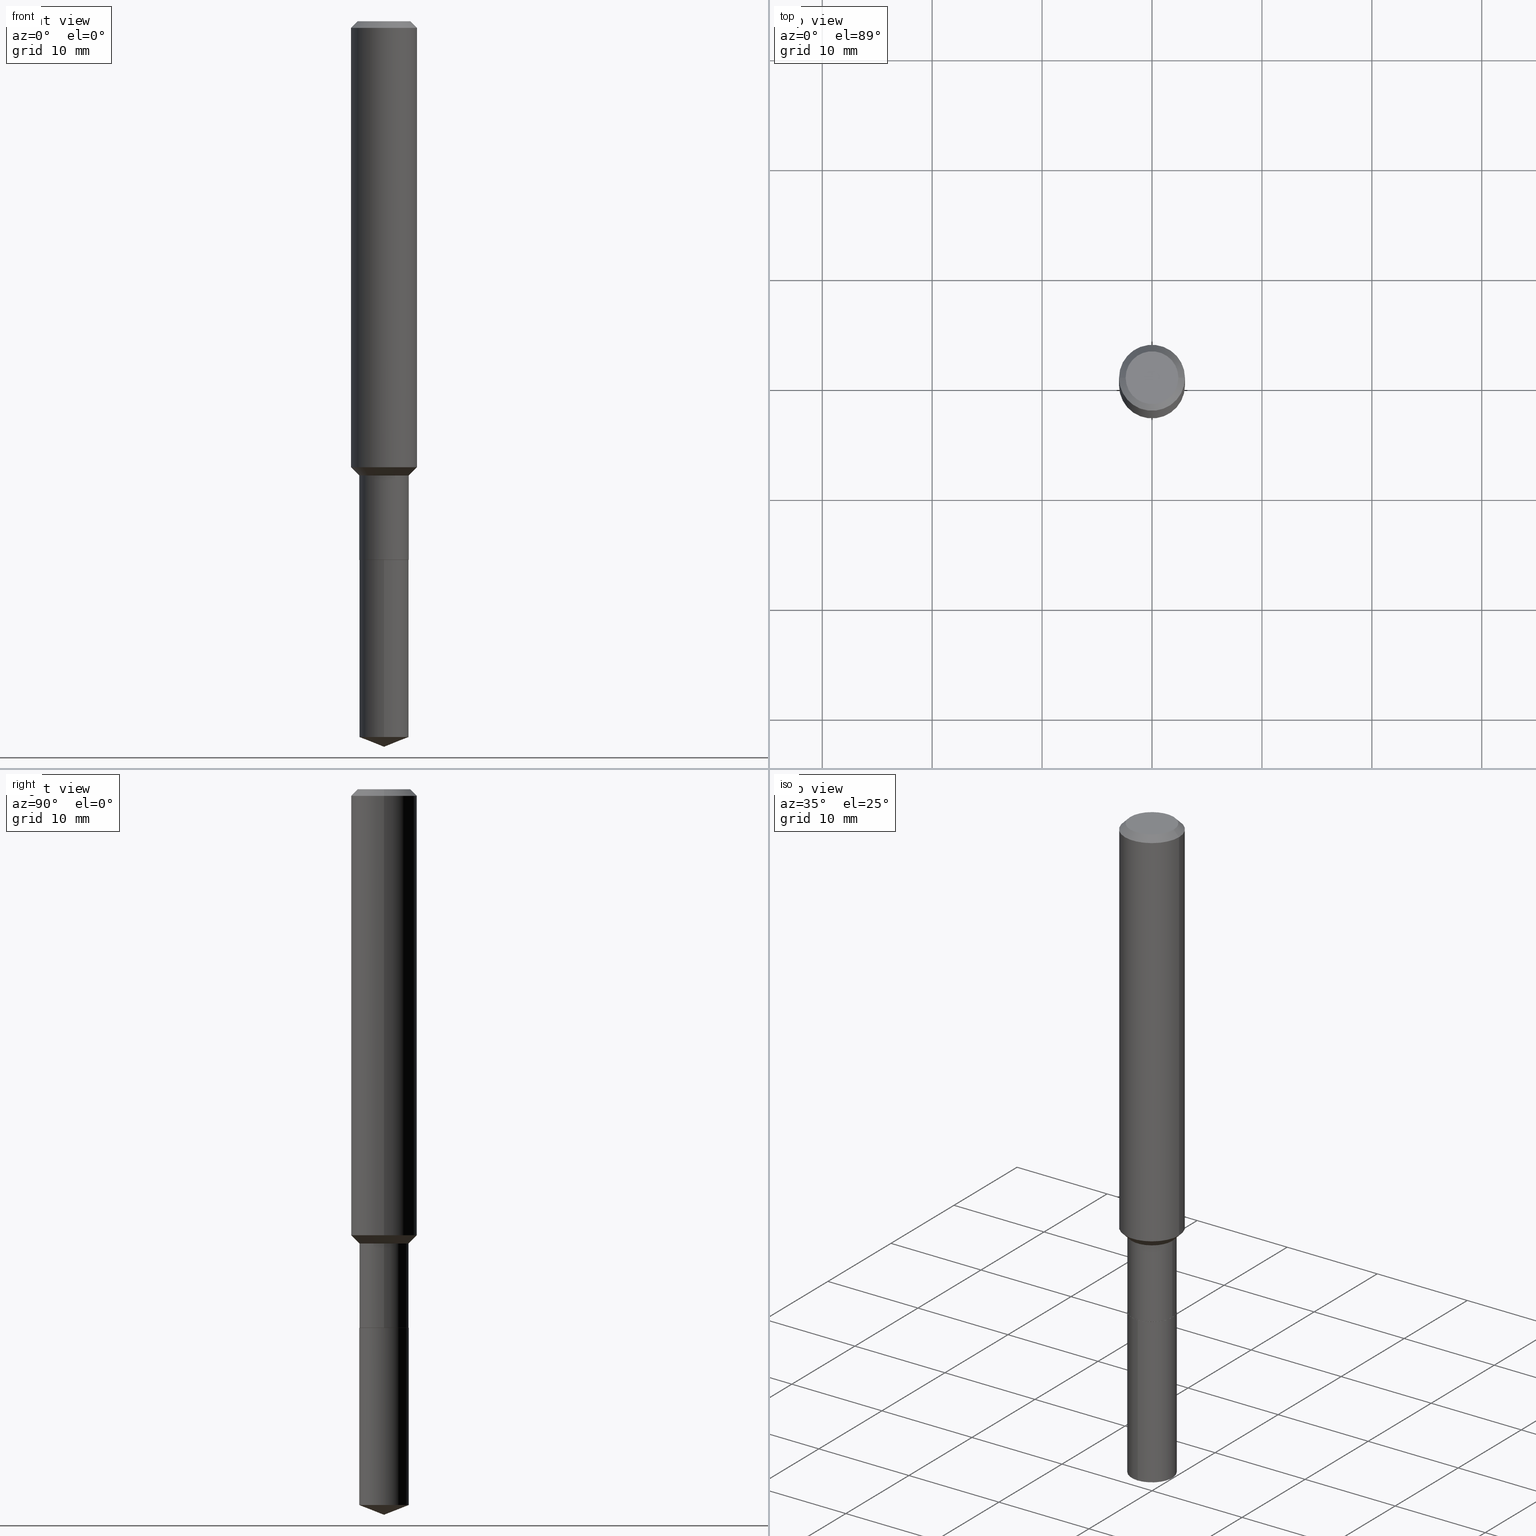
[diagram: canonical four-view strip — front | top / right | iso, engineering-drawing reading convention]
A machine part, canonical four-view strip (front | top / right | iso — engineering-drawing reading convention). The complete STEP part file that produces these views, byte-faithful:
ISO-10303-21;
HEADER;
FILE_DESCRIPTION (( 'STEP AP203' ),
    '1' );
FILE_NAME ('66415.STEP',
    '2024-04-24T22:23:58',
    ( '' ),
    ( '' ),
    'SwSTEP 2.0',
    'SolidWorks 2023',
    '' );
FILE_SCHEMA (( 'CONFIG_CONTROL_DESIGN' ));
ENDSEC;

DATA;
#1 = FACE_OUTER_BOUND ( 'NONE', #424, .T. ) ;
#2 = CARTESIAN_POINT ( 'NONE',  ( 0.08859999999999995657, -6.298981483406915301E-15, -1.626899999999999791 ) ) ;
#3 = ADVANCED_BREP_SHAPE_REPRESENTATION ( '66415', ( #487, #146, #377 ), #244 ) ;
#4 = AXIS2_PLACEMENT_3D ( 'NONE', #26, #402, #298 ) ;
#5 = AXIS2_PLACEMENT_3D ( 'NONE', #49, #470, #198 ) ;
#6 = LINE ( 'NONE', #161, #358 ) ;
#7 = ORIENTED_EDGE ( 'NONE', *, *, #173, .F. ) ;
#8 = EDGE_CURVE ( 'NONE', #422, #332, #333, .T. ) ;
#9 = CARTESIAN_POINT ( 'NONE',  ( 3.906391871000136996E-29, -5.577292290668039694E-15, -1.597399999999999709 ) ) ;
#10 = ORIENTED_EDGE ( 'NONE', *, *, #205, .F. ) ;
#11 = PRODUCT_DEFINITION ( 'UNKNOWN', '', #438, #242 ) ;
#12 = DIRECTION ( 'NONE',  ( 2.445468806185136597E-29, -3.491481338843145583E-15, -1.000000000000000000 ) ) ;
#13 = ORIENTED_EDGE ( 'NONE', *, *, #354, .F. ) ;
#14 = CARTESIAN_POINT ( 'NONE',  ( 5.776197320209327532E-31, -8.246878922347559293E-17, -0.02362000000000014088 ) ) ;
#15 = CC_DESIGN_APPROVAL ( #369, ( #438 ) ) ;
#16 = EDGE_LOOP ( 'NONE', ( #241, #375, #45, #210 ) ) ;
#17 = DIRECTION ( 'NONE',  ( 1.000000000000000000, 0.000000000000000000, 0.000000000000000000 ) ) ;
#18 = EDGE_LOOP ( 'NONE', ( #239, #36, #172 ) ) ;
#19 = COORDINATED_UNIVERSAL_TIME_OFFSET ( 5, 0, .BEHIND. ) ;
#20 = ORIENTED_EDGE ( 'NONE', *, *, #434, .T. ) ;
#21 = DIRECTION ( 'NONE',  ( 0.000000000000000000, 0.000000000000000000, 1.000000000000000000 ) ) ;
#22 = CIRCLE ( 'NONE', #81, 0.08809999999999999776 ) ;
#23 = DIRECTION ( 'NONE',  ( -2.445468806185136597E-29, 3.491481338843145583E-15, 1.000000000000000000 ) ) ;
#24 = EDGE_CURVE ( 'NONE', #214, #279, #166, .T. ) ;
#25 = APPROVAL_ROLE ( '' ) ;
#26 = CARTESIAN_POINT ( 'NONE',  ( 3.906391871000136996E-29, -5.577292290668039694E-15, -1.597399999999999709 ) ) ;
#27 = DIRECTION ( 'NONE',  ( 1.000000000000000000, -6.982962677686261189E-15, 0.000000000000000000 ) ) ;
#28 = CARTESIAN_POINT ( 'NONE',  ( -0.08859999999999995657, -5.577440086244953607E-15, -1.626899999999999791 ) ) ;
#29 = CONICAL_SURFACE ( 'NONE', #156, 0.1180999999999999966, 0.7853981633974460586 ) ;
#30 = CYLINDRICAL_SURFACE ( 'NONE', #325, 0.1181000000000001077 ) ;
#31 = DIRECTION ( 'NONE',  ( 1.000000000000000000, -6.982962677686266711E-15, 4.876176775795935793E-29 ) ) ;
#32 = CYLINDRICAL_SURFACE ( 'NONE', #437, 0.08859999999999999820 ) ;
#33 = AXIS2_PLACEMENT_3D ( 'NONE', #220, #305, #488 ) ;
#34 = ADVANCED_FACE ( 'NONE', ( #250 ), #223, .T. ) ;
#35 = DIRECTION ( 'NONE',  ( 1.000000000000000000, -6.982962677686265922E-15, 4.876176775795935232E-29 ) ) ;
#36 = ORIENTED_EDGE ( 'NONE', *, *, #205, .T. ) ;
#37 = APPROVAL ( #211, 'UNSPECIFIED' ) ;
#38 = LINE ( 'NONE', #44, #195 ) ;
#39 = ORIENTED_EDGE ( 'NONE', *, *, #163, .F. ) ;
#40 = DIRECTION ( 'NONE',  ( -2.445600324468022812E-29, 3.491292997176496654E-15, 1.000000000000000000 ) ) ;
#41 = ORIENTED_EDGE ( 'NONE', *, *, #413, .F. ) ;
#42 = AXIS2_PLACEMENT_3D ( 'NONE', #477, #57, #132 ) ;
#43 = AXIS2_PLACEMENT_3D ( 'NONE', #104, #482, #75 ) ;
#44 = CARTESIAN_POINT ( 'NONE',  ( -0.1180999999999999966, 7.422191030112725094E-16, -0.02362000000000014088 ) ) ;
#45 = ORIENTED_EDGE ( 'NONE', *, *, #413, .T. ) ;
#46 = DIRECTION ( 'NONE',  ( -2.445468806185136597E-29, 3.491481338843145583E-15, 1.000000000000000000 ) ) ;
#47 = ORIENTED_EDGE ( 'NONE', *, *, #396, .T. ) ;
#48 = ADVANCED_FACE ( 'NONE', ( #179 ), #330, .T. ) ;
#49 = CARTESIAN_POINT ( 'NONE',  ( 4.717553874011746679E-29, -6.735416650762311704E-15, -1.929099999999999815 ) ) ;
#50 = EDGE_LOOP ( 'NONE', ( #77, #201, #361, #383 ) ) ;
#51 = CONICAL_SURFACE ( 'NONE', #43, 0.08809999999999999776, 0.7853981633975507526 ) ;
#52 = VERTEX_POINT ( 'NONE', #443 ) ;
#53 = APPROVAL_STATUS ( 'not_yet_approved' ) ;
#54 = CARTESIAN_POINT ( 'NONE',  ( 0.000000000000000000, 0.000000000000000000, 0.000000000000000000 ) ) ;
#55 = ORIENTED_EDGE ( 'NONE', *, *, #311, .T. ) ;
#56 = DATE_TIME_ROLE ( 'classification_date' ) ;
#57 = DIRECTION ( 'NONE',  ( -2.445468806185136597E-29, 3.491481338843145583E-15, 1.000000000000000000 ) ) ;
#58 = COORDINATED_UNIVERSAL_TIME_OFFSET ( 5, 0, .BEHIND. ) ;
#59 = CYLINDRICAL_SURFACE ( 'NONE', #426, 0.1181000000000001077 ) ;
#60 = PERSON ( 'UNSPECIFIED', 'UNSPECIFIED', 'UNSPECIFIED', ('UNSPECIFIED'), ('UNSPECIFIED'), ('UNSPECIFIED') ) ;
#61 = EDGE_CURVE ( 'NONE', #228, #52, #435, .T. ) ;
#62 = CARTESIAN_POINT ( 'NONE',  ( 4.717553874011746679E-29, -6.735416650762311704E-15, -1.929099999999999815 ) ) ;
#63 = CALENDAR_DATE ( 2024, 24, 4 ) ;
#64 = AXIS2_PLACEMENT_3D ( 'NONE', #181, #363, #246 ) ;
#65 = DIRECTION ( 'NONE',  ( -6.982962677686265922E-15, -1.000000000000000000, 3.498627837350008561E-15 ) ) ;
#66 = VECTOR ( 'NONE', #200, 39.37007874015748143 ) ;
#67 = DIRECTION ( 'NONE',  ( -2.445468806185136597E-29, 3.491481338843145583E-15, 1.000000000000000000 ) ) ;
#68 = CARTESIAN_POINT ( 'NONE',  ( 0.08859999999999999820, -7.352361403335894731E-15, -1.928600000000000092 ) ) ;
#69 = ORIENTED_EDGE ( 'NONE', *, *, #226, .T. ) ;
#70 = EDGE_CURVE ( 'NONE', #281, #315, #410, .T. ) ;
#71 = CARTESIAN_POINT ( 'NONE',  ( -0.1181000000000001077, 8.391509709326790846E-16, -5.809262341591049389E-30 ) ) ;
#72 = CIRCLE ( 'NONE', #302, 0.08859999999999999820 ) ;
#73 = AXIS2_PLACEMENT_3D ( 'NONE', #273, #113, #382 ) ;
#74 = APPROVAL_PERSON_ORGANIZATION ( #406, #369, #293 ) ;
#75 = DIRECTION ( 'NONE',  ( 1.000000000000000000, -6.982962677686264344E-15, 0.000000000000000000 ) ) ;
#76 = DIRECTION ( 'NONE',  ( -2.445600324468022531E-29, 3.491292997176496654E-15, 1.000000000000000000 ) ) ;
#77 = ORIENTED_EDGE ( 'NONE', *, *, #389, .F. ) ;
#78 = DIRECTION ( 'NONE',  ( -6.982962677686265133E-15, -1.000000000000000000, 3.083349879982238325E-15 ) ) ;
#79 = EDGE_LOOP ( 'NONE', ( #317, #391, #87, #274 ) ) ;
#80 = VECTOR ( 'NONE', #208, 39.37007874015748143 ) ;
#81 = AXIS2_PLACEMENT_3D ( 'NONE', #240, #46, #164 ) ;
#82 = ORGANIZATION ( 'UNSPECIFIED', 'UNSPECIFIED', '' ) ;
#83 = CARTESIAN_POINT ( 'NONE',  ( 3.978533200782598270E-29, -5.680290990163912349E-15, -1.626899999999999791 ) ) ;
#84 = EDGE_LOOP ( 'NONE', ( #486, #144, #55, #490 ) ) ;
#85 = CARTESIAN_POINT ( 'NONE',  ( -6.186904932429559170E-16, -0.08860000000000672893, -1.929099999999999593 ) ) ;
#86 = CC_DESIGN_DATE_AND_TIME_ASSIGNMENT ( #472, #137, ( #11 ) ) ;
#87 = ORIENTED_EDGE ( 'NONE', *, *, #327, .T. ) ;
#88 = ADVANCED_FACE ( 'NONE', ( #212 ), #449, .F. ) ;
#89 = DIRECTION ( 'NONE',  ( 1.000000000000000000, -6.982962677686261189E-15, 0.000000000000000000 ) ) ;
#90 = ORIENTED_EDGE ( 'NONE', *, *, #163, .T. ) ;
#91 = CLOSED_SHELL ( 'NONE', ( #251, #344, #153, #484, #265, #256, #34, #245, #222, #303, #411, #394 ) ) ;
#92 = APPLICATION_PROTOCOL_DEFINITION ( 'international standard', 'config_control_design', 1994, #155 ) ;
#93 = CARTESIAN_POINT ( 'NONE',  ( -0.08859999999999998432, 6.295408638834486533E-16, -4.358176489965845566E-30 ) ) ;
#94 = CC_DESIGN_PERSON_AND_ORGANIZATION_ASSIGNMENT ( #253, #291, ( #176 ) ) ;
#95 = DIRECTION ( 'NONE',  ( 6.982962677686265922E-15, 1.000000000000000000, -3.491292997176496654E-15 ) ) ;
#96 = COORDINATED_UNIVERSAL_TIME_OFFSET ( 5, 0, .BEHIND. ) ;
#97 = DIRECTION ( 'NONE',  ( -6.982962677686265133E-15, -1.000000000000000000, 6.166699759964476650E-15 ) ) ;
#98 = CALENDAR_DATE ( 2024, 24, 4 ) ;
#99 = AXIS2_PLACEMENT_3D ( 'NONE', #174, #129, #473 ) ;
#100 = LINE ( 'NONE', #254, #425 ) ;
#101 = PERSON_AND_ORGANIZATION_ROLE ( 'creator' ) ;
#102 = CARTESIAN_POINT ( 'NONE',  ( 3.978533200782598270E-29, -5.680290990163912349E-15, -1.626899999999999791 ) ) ;
#103 = DIRECTION ( 'NONE',  ( 0.7071067811865495711, -2.468850131082277965E-15, 0.7071067811865454633 ) ) ;
#104 = CARTESIAN_POINT ( 'NONE',  ( 4.717553874011746679E-29, -6.735416650762311704E-15, -1.929099999999999815 ) ) ;
#105 = AXIS2_PLACEMENT_3D ( 'NONE', #9, #314, #432 ) ;
#106 = FACE_OUTER_BOUND ( 'NONE', #50, .T. ) ;
#107 = DIRECTION ( 'NONE',  ( -1.000000000000000000, 6.982962677686265922E-15, -4.876176775795935793E-29 ) ) ;
#108 = ORIENTED_EDGE ( 'NONE', *, *, #24, .T. ) ;
#109 = CARTESIAN_POINT ( 'NONE',  ( 6.354140459258678806E-29, -9.072502383681672387E-15, -2.598399999999999821 ) ) ;
#110 = ORIENTED_EDGE ( 'NONE', *, *, #327, .F. ) ;
#111 = DIRECTION ( 'NONE',  ( -2.445468806185136597E-29, 3.491481338843145583E-15, 1.000000000000000000 ) ) ;
#112 = EDGE_LOOP ( 'NONE', ( #199, #467 ) ) ;
#113 = DIRECTION ( 'NONE',  ( -2.445600324468022812E-29, 3.491292997176496654E-15, 1.000000000000000000 ) ) ;
#114 = VERTEX_POINT ( 'NONE', #397 ) ;
#115 = FACE_OUTER_BOUND ( 'NONE', #264, .T. ) ;
#116 = ORIENTED_EDGE ( 'NONE', *, *, #120, .T. ) ;
#117 = CIRCLE ( 'NONE', #243, 0.08809999999999999776 ) ;
#118 = CARTESIAN_POINT ( 'NONE',  ( 5.776197320209327532E-31, -8.246878922347559293E-17, -0.02362000000000014088 ) ) ;
#119 = ORIENTED_EDGE ( 'NONE', *, *, #448, .T. ) ;
#120 = EDGE_CURVE ( 'NONE', #165, #464, #72, .T. ) ;
#121 = CARTESIAN_POINT ( 'NONE',  ( 4.717553874011746679E-29, -6.735416650762311704E-15, -1.929099999999999815 ) ) ;
#122 = ORIENTED_EDGE ( 'NONE', *, *, #61, .T. ) ;
#123 = CARTESIAN_POINT ( 'NONE',  ( -0.08809999999999999776, -6.109428500557663752E-15, -1.929099999999999815 ) ) ;
#124 = AXIS2_PLACEMENT_3D ( 'NONE', #329, #294, #475 ) ;
#125 = AXIS2_PLACEMENT_3D ( 'NONE', #338, #458, #65 ) ;
#126 = EDGE_CURVE ( 'NONE', #469, #315, #368, .T. ) ;
#127 = CONICAL_SURFACE ( 'NONE', #268, 0.08859999999999995657, 0.7853981633974511656 ) ;
#128 = PERSON_AND_ORGANIZATION ( #60, #82 ) ;
#129 = DIRECTION ( 'NONE',  ( -2.445468806185136597E-29, 3.491481338843145583E-15, 1.000000000000000000 ) ) ;
#130 = CC_DESIGN_PERSON_AND_ORGANIZATION_ASSIGNMENT ( #128, #288, ( #290 ) ) ;
#131 = PERSON_AND_ORGANIZATION_ROLE ( 'design_supplier' ) ;
#132 = DIRECTION ( 'NONE',  ( 1.000000000000000000, -6.982962677686269077E-15, 0.000000000000000000 ) ) ;
#133 = LENGTH_MEASURE_WITH_UNIT ( LENGTH_MEASURE( 0.02539999999999999897 ), #365 );
#134 = EDGE_CURVE ( 'NONE', #206, #281, #446, .T. ) ;
#135 = DIRECTION ( 'NONE',  ( -2.445468806185136597E-29, 3.491481338843145583E-15, 1.000000000000000000 ) ) ;
#136 = CC_DESIGN_PERSON_AND_ORGANIZATION_ASSIGNMENT ( #362, #328, ( #438 ) ) ;
#137 = DATE_TIME_ROLE ( 'creation_date' ) ;
#138 = CONICAL_SURFACE ( 'NONE', #5, 0.08809999999999999776, 0.7853981633975507526 ) ;
#139 = DIRECTION ( 'NONE',  ( -2.445600324468022812E-29, 3.491292997176496654E-15, 1.000000000000000000 ) ) ;
#140 = APPROVAL_PERSON_ORGANIZATION ( #297, #37, #25 ) ;
#141 = DATE_AND_TIME ( #63, #219 ) ;
#142 = CARTESIAN_POINT ( 'NONE',  ( 4.717553874011746679E-29, -6.735416650762311704E-15, -1.929099999999999815 ) ) ;
#143 = CARTESIAN_POINT ( 'NONE',  ( 4.717553874011746679E-29, -6.735416650762311704E-15, -1.929099999999999815 ) ) ;
#144 = ORIENTED_EDGE ( 'NONE', *, *, #145, .T. ) ;
#145 = EDGE_CURVE ( 'NONE', #159, #471, #418, .T. ) ;
#146 = MANIFOLD_SOLID_BREP ( 'Body-Move/Copy2[2]', #91 ) ;
#147 = EDGE_CURVE ( 'NONE', #159, #422, #100, .T. ) ;
#148 = CLOSED_SHELL ( 'NONE', ( #48, #465, #213, #234, #88 ) ) ;
#149 = DIRECTION ( 'NONE',  ( 1.000000000000000000, -6.982962677686265922E-15, 4.876176775795935232E-29 ) ) ;
#150 = DIRECTION ( 'NONE',  ( -1.000000000000000000, 6.982962677686266711E-15, 0.000000000000000000 ) ) ;
#151 = ORIENTED_EDGE ( 'NONE', *, *, #483, .T. ) ;
#152 = LINE ( 'NONE', #335, #447 ) ;
#153 = ADVANCED_FACE ( 'NONE', ( #407 ), #59, .T. ) ;
#154 = CARTESIAN_POINT ( 'NONE',  ( 0.08859999999999998432, -6.186904932430030515E-16, 4.320292623355198064E-30 ) ) ;
#155 = APPLICATION_CONTEXT ( 'configuration controlled 3d designs of mechanical parts and assemblies' ) ;
#156 = AXIS2_PLACEMENT_3D ( 'NONE', #118, #12, #320 ) ;
#157 = APPROVAL_PERSON_ORGANIZATION ( #392, #454, #439 ) ;
#158 = DIRECTION ( 'NONE',  ( -2.445600324468022531E-29, 3.491292997176496654E-15, 1.000000000000000000 ) ) ;
#159 = VERTEX_POINT ( 'NONE', #28 ) ;
#160 = PRODUCT_DEFINITION_SHAPE ( 'NONE', 'NONE',  #11 ) ;
#161 = CARTESIAN_POINT ( 'NONE',  ( 6.295408638834957877E-16, 0.08859999999999326747, -1.929100000000000259 ) ) ;
#162 = ORIENTED_EDGE ( 'NONE', *, *, #442, .F. ) ;
#163 = EDGE_CURVE ( 'NONE', #315, #281, #216, .T. ) ;
#164 = DIRECTION ( 'NONE',  ( 1.000000000000000000, -6.982962677686264344E-15, 0.000000000000000000 ) ) ;
#165 = VERTEX_POINT ( 'NONE', #284 ) ;
#166 = CIRCLE ( 'NONE', #64, 0.1180999999999999966 ) ;
#167 = VECTOR ( 'NONE', #456, 39.37007874015748143 ) ;
#168 = PRODUCT_RELATED_PRODUCT_CATEGORY ( 'detail', '', ( #290 ) ) ;
#169 = DIRECTION ( 'NONE',  ( 1.000000000000000000, -6.982962677686266711E-15, 0.000000000000000000 ) ) ;
#170 = ORIENTED_EDGE ( 'NONE', *, *, #389, .T. ) ;
#171 = COORDINATED_UNIVERSAL_TIME_OFFSET ( 5, 0, .BEHIND. ) ;
#172 = ORIENTED_EDGE ( 'NONE', *, *, #299, .F. ) ;
#173 = EDGE_CURVE ( 'NONE', #315, #159, #436, .T. ) ;
#174 = CARTESIAN_POINT ( 'NONE',  ( 4.716331139608654438E-29, -6.733670910092890989E-15, -1.928600000000000092 ) ) ;
#175 = VECTOR ( 'NONE', #76, 39.37007874015748143 ) ;
#176 = SECURITY_CLASSIFICATION ( '', '', #178 ) ;
#177 = DIRECTION ( 'NONE',  ( -2.445600324468022812E-29, 3.491292997176496654E-15, 1.000000000000000000 ) ) ;
#178 = SECURITY_CLASSIFICATION_LEVEL ( 'unclassified' ) ;
#179 = FACE_OUTER_BOUND ( 'NONE', #459, .T. ) ;
#180 = DATE_AND_TIME ( #98, #405 ) ;
#181 = CARTESIAN_POINT ( 'NONE',  ( 5.776197320209327532E-31, -8.246878922347559293E-17, -0.02362000000000014088 ) ) ;
#182 = CIRCLE ( 'NONE', #33, 0.09447999999999998066 ) ;
#183 = CARTESIAN_POINT ( 'NONE',  ( 2.358133508849003952E-46, -3.366789680499277518E-32, -9.642868896486260050E-18 ) ) ;
#184 = APPLICATION_CONTEXT ( 'configuration controlled 3d designs of mechanical parts and assemblies' ) ;
#185 = FACE_OUTER_BOUND ( 'NONE', #276, .T. ) ;
#186 = CARTESIAN_POINT ( 'NONE',  ( 0.1180999999999999966, -9.071566814582237199E-16, -0.02362000000000014088 ) ) ;
#187 = DIRECTION ( 'NONE',  ( -6.982962677686265133E-15, -1.000000000000000000, 3.083349879982238325E-15 ) ) ;
#188 = CC_DESIGN_APPROVAL ( #37, ( #176 ) ) ;
#189 = ORIENTED_EDGE ( 'NONE', *, *, #61, .F. ) ;
#190 = FACE_OUTER_BOUND ( 'NONE', #16, .T. ) ;
#191 = CARTESIAN_POINT ( 'NONE',  ( 6.295408638835111705E-16, 0.08859999999999103315, -2.563499531860516711 ) ) ;
#192 = EDGE_CURVE ( 'NONE', #422, #279, #248, .T. ) ;
#193 = CARTESIAN_POINT ( 'NONE',  ( -8.992908317008253669E-28, 1.283803411500265385E-13, 36.77167874015748339 ) ) ;
#194 = ORIENTED_EDGE ( 'NONE', *, *, #70, .T. ) ;
#195 = VECTOR ( 'NONE', #280, 39.37007874015748143 ) ;
#196 = CARTESIAN_POINT ( 'NONE',  ( 0.1181000000000001909, -6.401980182902788745E-15, -1.597399999999999709 ) ) ;
#197 = ORIENTED_EDGE ( 'NONE', *, *, #483, .F. ) ;
#198 = DIRECTION ( 'NONE',  ( 1.000000000000000000, -6.982962677686264344E-15, 0.000000000000000000 ) ) ;
#199 = ORIENTED_EDGE ( 'NONE', *, *, #282, .F. ) ;
#200 = DIRECTION ( 'NONE',  ( 6.611014441532066589E-15, 0.9304175679820270162, 0.3665012267242909183 ) ) ;
#201 = ORIENTED_EDGE ( 'NONE', *, *, #299, .T. ) ;
#202 = CIRCLE ( 'NONE', #267, 0.08859999999999999820 ) ;
#203 = DIMENSIONAL_EXPONENTS ( 1.000000000000000000, 0.000000000000000000, 0.000000000000000000, 0.000000000000000000, 0.000000000000000000, 0.000000000000000000, 0.000000000000000000 ) ;
#204 = MECHANICAL_CONTEXT ( 'NONE', #155, 'mechanical' ) ;
#205 = EDGE_CURVE ( 'NONE', #229, #165, #308, .T. ) ;
#206 = VERTEX_POINT ( 'NONE', #224 ) ;
#207 = APPROVAL_DATE_TIME ( #180, #454 ) ;
#208 = DIRECTION ( 'NONE',  ( 0.7071067811866199593, -2.468850131083015945E-15, 0.7071067811864750752 ) ) ;
#209 = APPROVAL_DATE_TIME ( #399, #369 ) ;
#210 = ORIENTED_EDGE ( 'NONE', *, *, #429, .T. ) ;
#211 = APPROVAL_STATUS ( 'not_yet_approved' ) ;
#212 = FACE_OUTER_BOUND ( 'NONE', #232, .T. ) ;
#213 = ADVANCED_FACE ( 'NONE', ( #412 ), #310, .T. ) ;
#214 = VERTEX_POINT ( 'NONE', #186 ) ;
#215 = DIRECTION ( 'NONE',  ( -2.445468806185136597E-29, 3.491481338843145583E-15, 1.000000000000000000 ) ) ;
#216 = CIRCLE ( 'NONE', #99, 0.08859999999999999820 ) ;
#217 = CIRCLE ( 'NONE', #73, 0.08859999999999999820 ) ;
#218 = LINE ( 'NONE', #263, #304 ) ;
#219 = LOCAL_TIME ( 18, 23, 58.00000000000000000, #58 ) ;
#220 = CARTESIAN_POINT ( 'NONE',  ( 4.716267017698007905E-46, -6.733579360998555036E-32, -1.928573779297252010E-17 ) ) ;
#221 = DIRECTION ( 'NONE',  ( -2.445468806185136597E-29, 3.491481338843145583E-15, 1.000000000000000000 ) ) ;
#222 = ADVANCED_FACE ( 'NONE', ( #190 ), #481, .T. ) ;
#223 = CONICAL_SURFACE ( 'NONE', #295, 0.08859999999999995657, 0.7853981633974511656 ) ;
#224 = CARTESIAN_POINT ( 'NONE',  ( 0.08809999999999999776, -7.350615662666470861E-15, -1.929099999999999815 ) ) ;
#225 = CIRCLE ( 'NONE', #404, 0.08859999999999999820 ) ;
#226 = EDGE_CURVE ( 'NONE', #52, #228, #182, .T. ) ;
#227 = DIRECTION ( 'NONE',  ( -6.982962677686265133E-15, -1.000000000000000000, 6.166699759964476650E-15 ) ) ;
#228 = VERTEX_POINT ( 'NONE', #455 ) ;
#229 = VERTEX_POINT ( 'NONE', #337 ) ;
#230 = UNCERTAINTY_MEASURE_WITH_UNIT (LENGTH_MEASURE( 1.000000000000000082E-05 ), #395, 'distance_accuracy_value', 'NONE');
#231 = LINE ( 'NONE', #387, #66 ) ;
#232 = EDGE_LOOP ( 'NONE', ( #321, #47 ) ) ;
#233 = AXIS2_PLACEMENT_3D ( 'NONE', #83, #236, #89 ) ;
#234 = ADVANCED_FACE ( 'NONE', ( #106 ), #32, .T. ) ;
#235 = AXIS2_PLACEMENT_3D ( 'NONE', #193, #316, #278 ) ;
#236 = DIRECTION ( 'NONE',  ( -2.445468806185136597E-29, 3.491481338843145583E-15, 1.000000000000000000 ) ) ;
#237 = ORIENTED_EDGE ( 'NONE', *, *, #134, .T. ) ;
#238 = DIRECTION ( 'NONE',  ( -2.445468806185136877E-29, 3.491481338843145188E-15, 1.000000000000000000 ) ) ;
#239 = ORIENTED_EDGE ( 'NONE', *, *, #403, .F. ) ;
#240 = CARTESIAN_POINT ( 'NONE',  ( 4.717553874011746679E-29, -6.735416650762311704E-15, -1.929099999999999815 ) ) ;
#241 = ORIENTED_EDGE ( 'NONE', *, *, #379, .F. ) ;
#242 = DESIGN_CONTEXT ( 'detailed design', #184, 'design' ) ;
#243 = AXIS2_PLACEMENT_3D ( 'NONE', #143, #221, #301 ) ;
#244 =( GEOMETRIC_REPRESENTATION_CONTEXT ( 3 ) GLOBAL_UNCERTAINTY_ASSIGNED_CONTEXT ( ( #230 ) ) GLOBAL_UNIT_ASSIGNED_CONTEXT ( ( #395, #247, #445 ) ) REPRESENTATION_CONTEXT ( 'NONE', 'WORKASPACE' ) );
#245 = ADVANCED_FACE ( 'NONE', ( #485 ), #30, .T. ) ;
#246 = DIRECTION ( 'NONE',  ( 1.000000000000000000, -6.982962677686266711E-15, 0.000000000000000000 ) ) ;
#247 =( NAMED_UNIT ( * ) PLANE_ANGLE_UNIT ( ) SI_UNIT ( $, .RADIAN. ) );
#248 = LINE ( 'NONE', #71, #167 ) ;
#249 = CALENDAR_DATE ( 2024, 24, 4 ) ;
#250 = FACE_OUTER_BOUND ( 'NONE', #84, .T. ) ;
#251 = ADVANCED_FACE ( 'NONE', ( #185 ), #51, .T. ) ;
#252 = AXIS2_PLACEMENT_3D ( 'NONE', #266, #260, #150 ) ;
#253 = PERSON_AND_ORGANIZATION ( #60, #82 ) ;
#254 = CARTESIAN_POINT ( 'NONE',  ( -0.08859999999999995657, -5.050750126280464287E-15, -1.626899999999999791 ) ) ;
#255 = DIRECTION ( 'NONE',  ( -6.982962677686265133E-15, -1.000000000000000000, 3.083349879982238325E-15 ) ) ;
#256 = ADVANCED_FACE ( 'NONE', ( #262 ), #339, .T. ) ;
#257 = CARTESIAN_POINT ( 'NONE',  ( 0.000000000000000000, 0.000000000000000000, 0.000000000000000000 ) ) ;
#258 = EDGE_LOOP ( 'NONE', ( #119, #269, #381, #388 ) ) ;
#259 = CIRCLE ( 'NONE', #105, 0.1181000000000001909 ) ;
#260 = DIRECTION ( 'NONE',  ( 2.445468806185136597E-29, -3.491481338843145583E-15, -1.000000000000000000 ) ) ;
#261 = APPROVAL_DATE_TIME ( #141, #37 ) ;
#262 = FACE_OUTER_BOUND ( 'NONE', #433, .T. ) ;
#263 = CARTESIAN_POINT ( 'NONE',  ( 0.1181000000000001077, -8.246878922347488542E-16, 5.758764772215005345E-30 ) ) ;
#264 = EDGE_LOOP ( 'NONE', ( #189, #353, #108, #41 ) ) ;
#265 = ADVANCED_FACE ( 'NONE', ( #1 ), #300, .T. ) ;
#266 = CARTESIAN_POINT ( 'NONE',  ( 5.776197320209327532E-31, -8.246878922347559293E-17, -0.02362000000000014088 ) ) ;
#267 = AXIS2_PLACEMENT_3D ( 'NONE', #121, #40, #78 ) ;
#268 = AXIS2_PLACEMENT_3D ( 'NONE', #390, #111, #270 ) ;
#269 = ORIENTED_EDGE ( 'NONE', *, *, #147, .T. ) ;
#270 = DIRECTION ( 'NONE',  ( 1.000000000000000000, -6.982962677686261189E-15, 0.000000000000000000 ) ) ;
#271 = ORIENTED_EDGE ( 'NONE', *, *, #134, .F. ) ;
#272 = CC_DESIGN_PERSON_AND_ORGANIZATION_ASSIGNMENT ( #441, #131, ( #438 ) ) ;
#273 = CARTESIAN_POINT ( 'NONE',  ( 4.717553874011746679E-29, -6.735416650762311704E-15, -1.929099999999999815 ) ) ;
#274 = ORIENTED_EDGE ( 'NONE', *, *, #429, .F. ) ;
#275 = FACE_OUTER_BOUND ( 'NONE', #408, .T. ) ;
#276 = EDGE_LOOP ( 'NONE', ( #415, #313, #357, #271 ) ) ;
#277 = VECTOR ( 'NONE', #238, 39.37007874015748143 ) ;
#278 = DIRECTION ( 'NONE',  ( -6.982962677686265922E-15, -1.000000000000000000, 3.498627837350008561E-15 ) ) ;
#279 = VERTEX_POINT ( 'NONE', #414 ) ;
#280 = DIRECTION ( 'NONE',  ( -0.7071067811865459074, 2.468850131082240100E-15, -0.7071067811865491270 ) ) ;
#281 = VERTEX_POINT ( 'NONE', #68 ) ;
#282 = EDGE_CURVE ( 'NONE', #206, #469, #117, .T. ) ;
#283 = APPROVAL_STATUS ( 'not_yet_approved' ) ;
#284 = CARTESIAN_POINT ( 'NONE',  ( -6.186904932429402384E-16, -0.08860000000000890774, -2.563499531860515823 ) ) ;
#285 = AXIS2_PLACEMENT_3D ( 'NONE', #463, #427, #421 ) ;
#286 = LOCAL_TIME ( 18, 23, 58.00000000000000000, #96 ) ;
#287 = LOCAL_TIME ( 18, 23, 58.00000000000000000, #476 ) ;
#288 = PERSON_AND_ORGANIZATION_ROLE ( 'design_owner' ) ;
#289 = DIRECTION ( 'NONE',  ( 2.445600324468022531E-29, -3.491292997176496654E-15, -1.000000000000000000 ) ) ;
#290 = PRODUCT ( '66415', '66415', '', ( #204 ) ) ;
#291 = PERSON_AND_ORGANIZATION_ROLE ( 'classification_officer' ) ;
#292 = CARTESIAN_POINT ( 'NONE',  ( 6.269041574972186787E-29, -8.950291293758979308E-15, -2.563499531860516267 ) ) ;
#293 = APPROVAL_ROLE ( '' ) ;
#294 = DIRECTION ( 'NONE',  ( -2.445468806185136597E-29, 3.491481338843145583E-15, 1.000000000000000000 ) ) ;
#295 = AXIS2_PLACEMENT_3D ( 'NONE', #102, #23, #400 ) ;
#296 = AXIS2_PLACEMENT_3D ( 'NONE', #306, #378, #35 ) ;
#297 = PERSON_AND_ORGANIZATION ( #60, #82 ) ;
#298 = DIRECTION ( 'NONE',  ( 1.000000000000000000, -6.982962677686269077E-15, 0.000000000000000000 ) ) ;
#299 = EDGE_CURVE ( 'NONE', #464, #165, #225, .T. ) ;
#300 = CYLINDRICAL_SURFACE ( 'NONE', #296, 0.08859999999999998432 ) ;
#301 = DIRECTION ( 'NONE',  ( 1.000000000000000000, -6.982962677686264344E-15, 0.000000000000000000 ) ) ;
#302 = AXIS2_PLACEMENT_3D ( 'NONE', #292, #139, #97 ) ;
#303 = ADVANCED_FACE ( 'NONE', ( #374 ), #380, .F. ) ;
#304 = VECTOR ( 'NONE', #372, 39.37007874015748143 ) ;
#305 = DIRECTION ( 'NONE',  ( -2.445468806185136597E-29, 3.491481338843145583E-15, 1.000000000000000000 ) ) ;
#306 = CARTESIAN_POINT ( 'NONE',  ( 0.000000000000000000, 0.000000000000000000, 0.000000000000000000 ) ) ;
#307 = ORIENTED_EDGE ( 'NONE', *, *, #120, .F. ) ;
#308 = LINE ( 'NONE', #109, #419 ) ;
#309 = FACE_OUTER_BOUND ( 'NONE', #258, .T. ) ;
#310 = CONICAL_SURFACE ( 'NONE', #125, 99.94676754583984746, 1.195550537616119069 ) ;
#311 = EDGE_CURVE ( 'NONE', #471, #332, #152, .T. ) ;
#312 = FACE_OUTER_BOUND ( 'NONE', #112, .T. ) ;
#313 = ORIENTED_EDGE ( 'NONE', *, *, #126, .T. ) ;
#314 = DIRECTION ( 'NONE',  ( -2.445468806185136597E-29, 3.491481338843145583E-15, 1.000000000000000000 ) ) ;
#315 = VERTEX_POINT ( 'NONE', #409 ) ;
#316 = DIRECTION ( 'NONE',  ( -2.445600324468022812E-29, 3.491292997176496654E-15, 1.000000000000000000 ) ) ;
#317 = ORIENTED_EDGE ( 'NONE', *, *, #192, .F. ) ;
#318 = AXIS2_PLACEMENT_3D ( 'NONE', #420, #67, #149 ) ;
#319 = CC_DESIGN_SECURITY_CLASSIFICATION ( #176, ( #438 ) ) ;
#320 = DIRECTION ( 'NONE',  ( -1.000000000000000000, 6.982962677686266711E-15, 0.000000000000000000 ) ) ;
#321 = ORIENTED_EDGE ( 'NONE', *, *, #354, .T. ) ;
#322 = CARTESIAN_POINT ( 'NONE',  ( 4.717553874011746679E-29, -6.735416650762311704E-15, -1.929099999999999815 ) ) ;
#323 = CALENDAR_DATE ( 2024, 24, 4 ) ;
#324 = CARTESIAN_POINT ( 'NONE',  ( 3.978533200782598270E-29, -5.680290990163912349E-15, -1.626899999999999791 ) ) ;
#325 = AXIS2_PLACEMENT_3D ( 'NONE', #257, #341, #31 ) ;
#326 = CC_DESIGN_APPROVAL ( #454, ( #11 ) ) ;
#327 = EDGE_CURVE ( 'NONE', #332, #214, #218, .T. ) ;
#328 = PERSON_AND_ORGANIZATION_ROLE ( 'creator' ) ;
#329 = CARTESIAN_POINT ( 'NONE',  ( 4.716267017698007905E-46, -6.733579360998555036E-32, -1.928573779297252010E-17 ) ) ;
#330 = CYLINDRICAL_SURFACE ( 'NONE', #345, 0.08859999999999999820 ) ;
#331 = CALENDAR_DATE ( 2024, 24, 4 ) ;
#332 = VERTEX_POINT ( 'NONE', #196 ) ;
#333 = CIRCLE ( 'NONE', #4, 0.1181000000000001909 ) ;
#334 = VECTOR ( 'NONE', #355, 39.37007874015748143 ) ;
#335 = CARTESIAN_POINT ( 'NONE',  ( 0.08859999999999995657, -6.298981483406915301E-15, -1.626899999999999791 ) ) ;
#336 = SHAPE_DEFINITION_REPRESENTATION ( #160, #3 ) ;
#337 = CARTESIAN_POINT ( 'NONE',  ( 6.354647883097709109E-29, -9.071775723863410041E-15, -2.598399999999999821 ) ) ;
#338 = CARTESIAN_POINT ( 'NONE',  ( -8.992908317008253669E-28, 1.283803411500265385E-13, 36.77167874015748339 ) ) ;
#339 = CYLINDRICAL_SURFACE ( 'NONE', #318, 0.08859999999999998432 ) ;
#340 = ORIENTED_EDGE ( 'NONE', *, *, #145, .F. ) ;
#341 = DIRECTION ( 'NONE',  ( -2.445468806185136597E-29, 3.491481338843145583E-15, 1.000000000000000000 ) ) ;
#342 = ORIENTED_EDGE ( 'NONE', *, *, #173, .T. ) ;
#343 = CARTESIAN_POINT ( 'NONE',  ( -0.08809999999999999776, -6.106779273383552551E-15, -1.929099999999999815 ) ) ;
#344 = ADVANCED_FACE ( 'NONE', ( #115 ), #29, .T. ) ;
#345 = AXIS2_PLACEMENT_3D ( 'NONE', #322, #177, #255 ) ;
#346 = VECTOR ( 'NONE', #440, 39.37007874015748143 ) ;
#347 = LINE ( 'NONE', #468, #334 ) ;
#348 = LOCAL_TIME ( 18, 23, 58.00000000000000000, #19 ) ;
#349 = ORIENTED_EDGE ( 'NONE', *, *, #448, .F. ) ;
#350 = CARTESIAN_POINT ( 'NONE',  ( -0.1181000000000001909, -4.738141319735359130E-15, -1.597399999999999709 ) ) ;
#351 = ORIENTED_EDGE ( 'NONE', *, *, #403, .T. ) ;
#352 = DIRECTION ( 'NONE',  ( -2.445468806185136597E-29, 3.491481338843145583E-15, 1.000000000000000000 ) ) ;
#353 = ORIENTED_EDGE ( 'NONE', *, *, #379, .T. ) ;
#354 = EDGE_CURVE ( 'NONE', #114, #359, #217, .T. ) ;
#355 = DIRECTION ( 'NONE',  ( 0.7071067811865459074, -7.319954787623249734E-15, -0.7071067811865491270 ) ) ;
#356 = VECTOR ( 'NONE', #366, 39.37007874015748143 ) ;
#357 = ORIENTED_EDGE ( 'NONE', *, *, #70, .F. ) ;
#358 = VECTOR ( 'NONE', #158, 39.37007874015748143 ) ;
#359 = VERTEX_POINT ( 'NONE', #423 ) ;
#360 = PERSON_AND_ORGANIZATION ( #60, #82 ) ;
#361 = ORIENTED_EDGE ( 'NONE', *, *, #442, .T. ) ;
#362 = PERSON_AND_ORGANIZATION ( #60, #82 ) ;
#363 = DIRECTION ( 'NONE',  ( -2.445468806185136597E-29, 3.491481338843145583E-15, 1.000000000000000000 ) ) ;
#364 = AXIS2_PLACEMENT_3D ( 'NONE', #324, #135, #27 ) ;
#365 =( LENGTH_UNIT ( ) NAMED_UNIT ( * ) SI_UNIT ( $, .METRE. ) );
#366 = DIRECTION ( 'NONE',  ( -0.7071067811866199593, 7.493145998870616062E-15, 0.7071067811864750752 ) ) ;
#367 = APPLICATION_PROTOCOL_DEFINITION ( 'international standard', 'config_control_design', 1994, #184 ) ;
#368 = LINE ( 'NONE', #123, #356 ) ;
#369 = APPROVAL ( #283, 'UNSPECIFIED' ) ;
#370 = DIRECTION ( 'NONE',  ( 1.000000000000000000, -6.982962677686266711E-15, 4.876176775795935793E-29 ) ) ;
#371 = CONICAL_SURFACE ( 'NONE', #235, 99.94676754583984746, 1.195550537616119069 ) ;
#372 = DIRECTION ( 'NONE',  ( -2.445468806185136877E-29, 3.491481338843145188E-15, 1.000000000000000000 ) ) ;
#373 = DIRECTION ( 'NONE',  ( -6.497071151882118258E-15, -0.9304175679820244627, 0.3665012267242974686 ) ) ;
#374 = FACE_OUTER_BOUND ( 'NONE', #462, .T. ) ;
#375 = ORIENTED_EDGE ( 'NONE', *, *, #226, .F. ) ;
#376 = AXIS2_PLACEMENT_3D ( 'NONE', #183, #489, #107 ) ;
#377 = AXIS2_PLACEMENT_3D ( 'NONE', #479, #21, #17 ) ;
#378 = DIRECTION ( 'NONE',  ( -2.445468806185136597E-29, 3.491481338843145583E-15, 1.000000000000000000 ) ) ;
#379 = EDGE_CURVE ( 'NONE', #228, #214, #347, .T. ) ;
#380 = PLANE ( 'NONE',  #376 ) ;
#381 = ORIENTED_EDGE ( 'NONE', *, *, #434, .F. ) ;
#382 = DIRECTION ( 'NONE',  ( -6.982962677686265133E-15, -1.000000000000000000, 3.083349879982238325E-15 ) ) ;
#383 = ORIENTED_EDGE ( 'NONE', *, *, #396, .F. ) ;
#384 = CIRCLE ( 'NONE', #233, 0.08859999999999995657 ) ;
#385 = PLANE ( 'NONE',  #285 ) ;
#386 = ORIENTED_EDGE ( 'NONE', *, *, #460, .T. ) ;
#387 = CARTESIAN_POINT ( 'NONE',  ( 6.354652332605812611E-29, -9.071775723863410041E-15, -2.598399999999999821 ) ) ;
#388 = ORIENTED_EDGE ( 'NONE', *, *, #311, .F. ) ;
#389 = EDGE_CURVE ( 'NONE', #464, #359, #6, .T. ) ;
#390 = CARTESIAN_POINT ( 'NONE',  ( 3.978533200782598270E-29, -5.680290990163912349E-15, -1.626899999999999791 ) ) ;
#391 = ORIENTED_EDGE ( 'NONE', *, *, #8, .T. ) ;
#392 = PERSON_AND_ORGANIZATION ( #60, #82 ) ;
#393 = ORIENTED_EDGE ( 'NONE', *, *, #192, .T. ) ;
#394 = ADVANCED_FACE ( 'NONE', ( #275 ), #138, .T. ) ;
#395 =( CONVERSION_BASED_UNIT ( 'INCH', #133 ) LENGTH_UNIT ( ) NAMED_UNIT ( #203 ) );
#396 = EDGE_CURVE ( 'NONE', #359, #114, #202, .T. ) ;
#397 = CARTESIAN_POINT ( 'NONE',  ( -6.186904932429559170E-16, -0.08860000000000672893, -1.929099999999999593 ) ) ;
#398 = CC_DESIGN_DATE_AND_TIME_ASSIGNMENT ( #401, #56, ( #176 ) ) ;
#399 = DATE_AND_TIME ( #323, #348 ) ;
#400 = DIRECTION ( 'NONE',  ( 1.000000000000000000, -6.982962677686261189E-15, 0.000000000000000000 ) ) ;
#401 = DATE_AND_TIME ( #249, #286 ) ;
#402 = DIRECTION ( 'NONE',  ( -2.445468806185136597E-29, 3.491481338843145583E-15, 1.000000000000000000 ) ) ;
#403 = EDGE_CURVE ( 'NONE', #229, #464, #231, .T. ) ;
#404 = AXIS2_PLACEMENT_3D ( 'NONE', #450, #416, #227 ) ;
#405 = LOCAL_TIME ( 18, 23, 58.00000000000000000, #171 ) ;
#406 = PERSON_AND_ORGANIZATION ( #60, #82 ) ;
#407 = FACE_OUTER_BOUND ( 'NONE', #428, .T. ) ;
#408 = EDGE_LOOP ( 'NONE', ( #431, #386, #237, #39 ) ) ;
#409 = CARTESIAN_POINT ( 'NONE',  ( -0.08859999999999999820, -5.577440086244953607E-15, -1.928600000000000092 ) ) ;
#410 = CIRCLE ( 'NONE', #42, 0.08859999999999999820 ) ;
#411 = ADVANCED_FACE ( 'NONE', ( #312 ), #385, .F. ) ;
#412 = FACE_OUTER_BOUND ( 'NONE', #18, .T. ) ;
#413 = EDGE_CURVE ( 'NONE', #52, #279, #38, .T. ) ;
#414 = CARTESIAN_POINT ( 'NONE',  ( -0.1180999999999999966, -1.990729569013078195E-15, -0.02362000000000014088 ) ) ;
#415 = ORIENTED_EDGE ( 'NONE', *, *, #282, .T. ) ;
#416 = DIRECTION ( 'NONE',  ( -2.445600324468022812E-29, 3.491292997176496654E-15, 1.000000000000000000 ) ) ;
#417 = ORIENTED_EDGE ( 'NONE', *, *, #24, .F. ) ;
#418 = CIRCLE ( 'NONE', #364, 0.08859999999999995657 ) ;
#419 = VECTOR ( 'NONE', #373, 39.37007874015748143 ) ;
#420 = CARTESIAN_POINT ( 'NONE',  ( 0.000000000000000000, 0.000000000000000000, 0.000000000000000000 ) ) ;
#421 = DIRECTION ( 'NONE',  ( 1.000000000000000000, -6.982962677686265922E-15, 4.876176775795935793E-29 ) ) ;
#422 = VERTEX_POINT ( 'NONE', #350 ) ;
#423 = CARTESIAN_POINT ( 'NONE',  ( 6.295408638835114663E-16, 0.08859999999999326747, -1.929100000000000259 ) ) ;
#424 = EDGE_LOOP ( 'NONE', ( #194, #342, #349, #197 ) ) ;
#425 = VECTOR ( 'NONE', #480, 39.37007874015748143 ) ;
#426 = AXIS2_PLACEMENT_3D ( 'NONE', #54, #215, #370 ) ;
#427 = DIRECTION ( 'NONE',  ( -2.438088387897960049E-29, 3.491481338843145188E-15, 1.000000000000000000 ) ) ;
#428 = EDGE_LOOP ( 'NONE', ( #20, #393, #417, #110 ) ) ;
#429 = EDGE_CURVE ( 'NONE', #279, #214, #453, .T. ) ;
#430 = LINE ( 'NONE', #154, #277 ) ;
#431 = ORIENTED_EDGE ( 'NONE', *, *, #126, .F. ) ;
#432 = DIRECTION ( 'NONE',  ( 1.000000000000000000, -6.982962677686269077E-15, 0.000000000000000000 ) ) ;
#433 = EDGE_LOOP ( 'NONE', ( #7, #90, #151, #340 ) ) ;
#434 = EDGE_CURVE ( 'NONE', #332, #422, #259, .T. ) ;
#435 = CIRCLE ( 'NONE', #124, 0.09447999999999998066 ) ;
#436 = LINE ( 'NONE', #93, #346 ) ;
#437 = AXIS2_PLACEMENT_3D ( 'NONE', #142, #451, #187 ) ;
#438 = PRODUCT_DEFINITION_FORMATION_WITH_SPECIFIED_SOURCE ( 'ANY', '', #290, .NOT_KNOWN. ) ;
#439 = APPROVAL_ROLE ( '' ) ;
#440 = DIRECTION ( 'NONE',  ( -2.445468806185136877E-29, 3.491481338843145188E-15, 1.000000000000000000 ) ) ;
#441 = PERSON_AND_ORGANIZATION ( #60, #82 ) ;
#442 = EDGE_CURVE ( 'NONE', #165, #114, #466, .T. ) ;
#443 = CARTESIAN_POINT ( 'NONE',  ( -0.09447999999999998066, 7.009847083995354710E-16, -1.928573779297727792E-17 ) ) ;
#444 = CC_DESIGN_PERSON_AND_ORGANIZATION_ASSIGNMENT ( #360, #101, ( #11 ) ) ;
#445 =( NAMED_UNIT ( * ) SI_UNIT ( $, .STERADIAN. ) SOLID_ANGLE_UNIT ( ) );
#446 = LINE ( 'NONE', #478, #80 ) ;
#447 = VECTOR ( 'NONE', #103, 39.37007874015748143 ) ;
#448 = EDGE_CURVE ( 'NONE', #471, #159, #384, .T. ) ;
#449 = PLANE ( 'NONE',  #452 ) ;
#450 = CARTESIAN_POINT ( 'NONE',  ( 6.269041574972186787E-29, -8.950291293758979308E-15, -2.563499531860516267 ) ) ;
#451 = DIRECTION ( 'NONE',  ( -2.445600324468022812E-29, 3.491292997176496654E-15, 1.000000000000000000 ) ) ;
#452 = AXIS2_PLACEMENT_3D ( 'NONE', #62, #289, #95 ) ;
#453 = CIRCLE ( 'NONE', #474, 0.1180999999999999966 ) ;
#454 = APPROVAL ( #53, 'UNSPECIFIED' ) ;
#455 = CARTESIAN_POINT ( 'NONE',  ( 0.09447999999999998066, -7.704367267948738690E-16, -1.928573779296752193E-17 ) ) ;
#456 = DIRECTION ( 'NONE',  ( -2.445468806185136877E-29, 3.491481338843145188E-15, 1.000000000000000000 ) ) ;
#457 = EDGE_LOOP ( 'NONE', ( #10, #351, #307 ) ) ;
#458 = DIRECTION ( 'NONE',  ( -2.445600324468022812E-29, 3.491292997176496654E-15, 1.000000000000000000 ) ) ;
#459 = EDGE_LOOP ( 'NONE', ( #116, #170, #13, #162 ) ) ;
#460 = EDGE_CURVE ( 'NONE', #469, #206, #22, .T. ) ;
#461 = FACE_OUTER_BOUND ( 'NONE', #457, .T. ) ;
#462 = EDGE_LOOP ( 'NONE', ( #69, #122 ) ) ;
#463 = CARTESIAN_POINT ( 'NONE',  ( 4.717553874011746679E-29, -6.735416650762311704E-15, -1.929099999999999815 ) ) ;
#464 = VERTEX_POINT ( 'NONE', #191 ) ;
#465 = ADVANCED_FACE ( 'NONE', ( #461 ), #371, .T. ) ;
#466 = LINE ( 'NONE', #85, #175 ) ;
#467 = ORIENTED_EDGE ( 'NONE', *, *, #460, .F. ) ;
#468 = CARTESIAN_POINT ( 'NONE',  ( 0.1180999999999999966, -8.926936027602933910E-16, -0.02362000000000014088 ) ) ;
#469 = VERTEX_POINT ( 'NONE', #343 ) ;
#470 = DIRECTION ( 'NONE',  ( -2.445468806185136597E-29, 3.491481338843145583E-15, 1.000000000000000000 ) ) ;
#471 = VERTEX_POINT ( 'NONE', #2 ) ;
#472 = DATE_AND_TIME ( #331, #287 ) ;
#473 = DIRECTION ( 'NONE',  ( 1.000000000000000000, -6.982962677686269077E-15, 0.000000000000000000 ) ) ;
#474 = AXIS2_PLACEMENT_3D ( 'NONE', #14, #352, #169 ) ;
#475 = DIRECTION ( 'NONE',  ( 1.000000000000000000, -6.982962677686267499E-15, 4.875432709231658792E-29 ) ) ;
#476 = COORDINATED_UNIVERSAL_TIME_OFFSET ( 5, 0, .BEHIND. ) ;
#477 = CARTESIAN_POINT ( 'NONE',  ( 4.716331139608654438E-29, -6.733670910092890989E-15, -1.928600000000000092 ) ) ;
#478 = CARTESIAN_POINT ( 'NONE',  ( 0.08809999999999999776, -7.350615662666470861E-15, -1.929099999999999815 ) ) ;
#479 = CARTESIAN_POINT ( 'NONE',  ( 0.000000000000000000, 0.000000000000000000, 0.000000000000000000 ) ) ;
#480 = DIRECTION ( 'NONE',  ( -0.7071067811865495711, 7.493145998870362049E-15, 0.7071067811865454633 ) ) ;
#481 = CONICAL_SURFACE ( 'NONE', #252, 0.1180999999999999966, 0.7853981633974460586 ) ;
#482 = DIRECTION ( 'NONE',  ( -2.445468806185136597E-29, 3.491481338843145583E-15, 1.000000000000000000 ) ) ;
#483 = EDGE_CURVE ( 'NONE', #281, #471, #430, .T. ) ;
#484 = ADVANCED_FACE ( 'NONE', ( #309 ), #127, .T. ) ;
#485 = FACE_OUTER_BOUND ( 'NONE', #79, .T. ) ;
#486 = ORIENTED_EDGE ( 'NONE', *, *, #147, .F. ) ;
#487 = MANIFOLD_SOLID_BREP ( 'Body-Move/Copy2[1]', #148 ) ;
#488 = DIRECTION ( 'NONE',  ( 1.000000000000000000, -6.982962677686267499E-15, 4.875432709231658792E-29 ) ) ;
#489 = DIRECTION ( 'NONE',  ( 2.438088387897960049E-29, -3.491481338843145188E-15, -1.000000000000000000 ) ) ;
#490 = ORIENTED_EDGE ( 'NONE', *, *, #8, .F. ) ;
ENDSEC;
END-ISO-10303-21;
